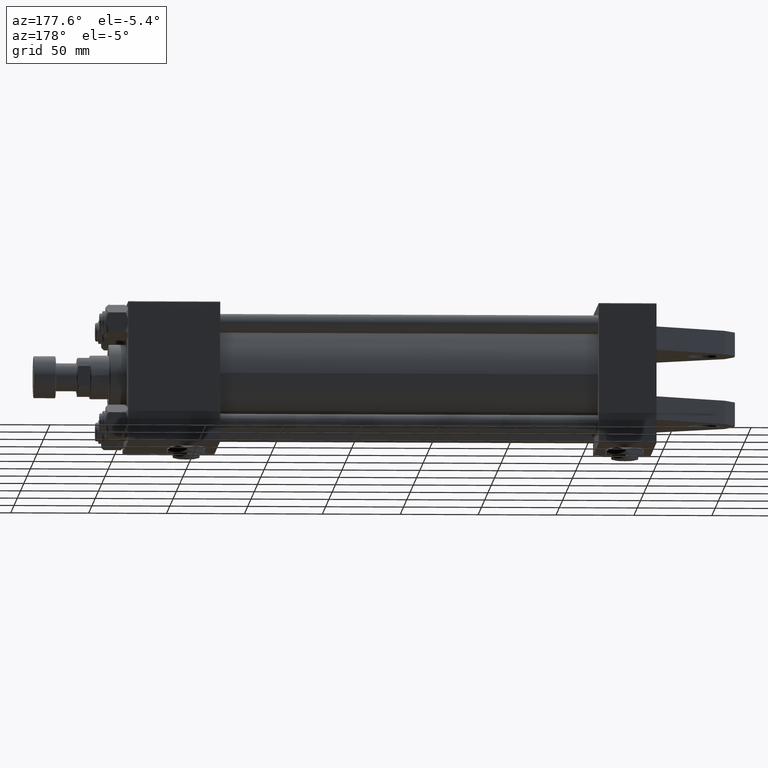
[diagram: clean part render]
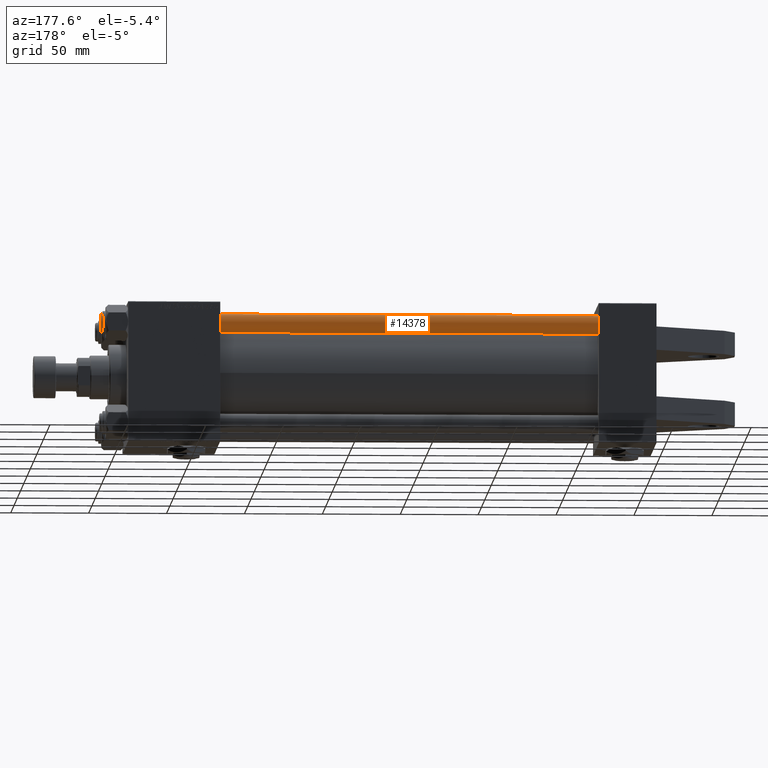
[diagram: same view with one face highlighted and labeled with its STEP entity id]
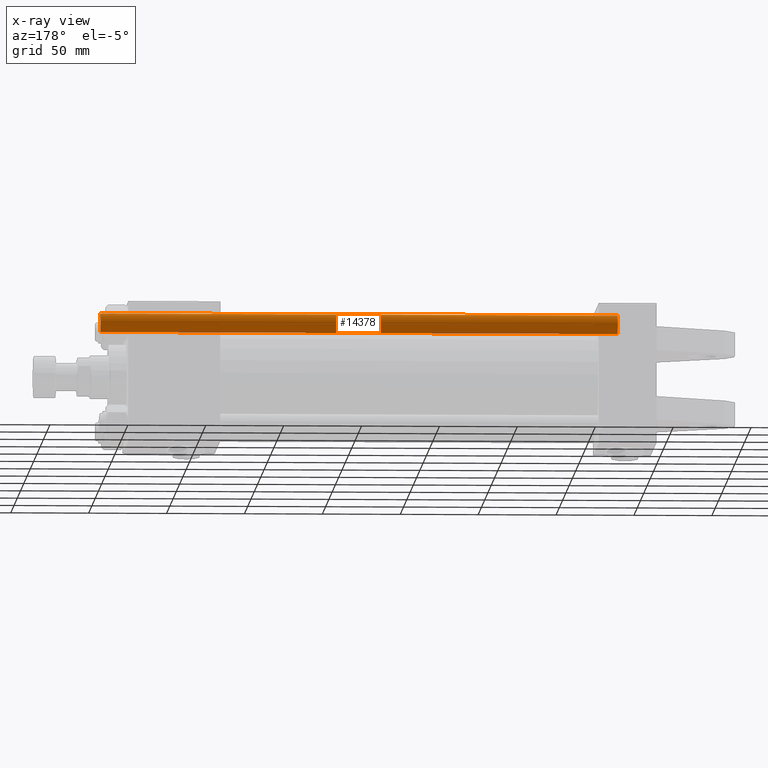
[diagram: x-ray of the same camera — body ghosted, the highlighted face saturated]
A machine part, auxiliary view. The second image highlights one B-rep face of the part: STEP entity #14378.
The next image is the same camera in x-ray: the body ghosted, the highlighted face saturated — about 0% of this face is hidden behind the body in this view.
In plain terms, the highlighted cylindrical surface (edge-blend (fillet) strip) has radius 6 mm, axis along (-1, 0, -0).
Its self-contained STEP definition (entity closure, byte-faithful):
#3773 = VECTOR ( 'NONE', #38193, 1000.000000000000000 ) ;
#3811 = AXIS2_PLACEMENT_3D ( 'NONE', #25862, #38008, #50700 ) ;
#6299 = FACE_OUTER_BOUND ( 'NONE', #17322, .T. ) ;
#6548 = CARTESIAN_POINT ( 'NONE',  ( -6.000000000000000888, 0.000000000000000000, 333.0000000000000000 ) ) ;
#9700 = CARTESIAN_POINT ( 'NONE',  ( -6.000000000000000888, 0.000000000000000000, 0.5000000000000004441 ) ) ;
#10570 = CIRCLE ( 'NONE', #26709, 6.000000000000000888 ) ;
#13113 = DIRECTION ( 'NONE',  ( 1.000000000000000000, 0.000000000000000000, 0.000000000000000000 ) ) ;
#13785 = EDGE_CURVE ( 'NONE', #26047, #42072, #42163, .T. ) ;
#14378 = ADVANCED_FACE ( 'NONE', ( #6299 ), #22419, .T. ) ;
#14438 = CARTESIAN_POINT ( 'NONE',  ( 6.000000000000000888, 7.347880794884120722E-16, 0.5000000000000004441 ) ) ;
#15488 = EDGE_CURVE ( 'NONE', #42072, #42017, #10570, .T. ) ;
#17322 = EDGE_LOOP ( 'NONE', ( #33253, #25091, #24149, #34578 ) ) ;
#18537 = AXIS2_PLACEMENT_3D ( 'NONE', #31616, #43267, #22919 ) ;
#22077 = CARTESIAN_POINT ( 'NONE',  ( 6.000000000000000888, 7.347880794884120722E-16, 333.0000000000000000 ) ) ;
#22134 = LINE ( 'NONE', #6548, #29221 ) ;
#22419 = CYLINDRICAL_SURFACE ( 'NONE', #3811, 6.000000000000000888 ) ;
#22912 = EDGE_CURVE ( 'NONE', #24939, #42017, #22134, .T. ) ;
#22919 = DIRECTION ( 'NONE',  ( 1.000000000000000000, 0.000000000000000000, 0.000000000000000000 ) ) ;
#24149 = ORIENTED_EDGE ( 'NONE', *, *, #15488, .T. ) ;
#24939 = VERTEX_POINT ( 'NONE', #28849 ) ;
#25091 = ORIENTED_EDGE ( 'NONE', *, *, #13785, .T. ) ;
#25862 = CARTESIAN_POINT ( 'NONE',  ( 0.000000000000000000, 0.000000000000000000, 333.0000000000000000 ) ) ;
#26047 = VERTEX_POINT ( 'NONE', #26645 ) ;
#26645 = CARTESIAN_POINT ( 'NONE',  ( 6.000000000000000888, 7.347880794884120722E-16, 332.5000000000001137 ) ) ;
#26709 = AXIS2_PLACEMENT_3D ( 'NONE', #29730, #49059, #13113 ) ;
#28849 = CARTESIAN_POINT ( 'NONE',  ( -6.000000000000000888, 0.000000000000000000, 332.5000000000001137 ) ) ;
#29221 = VECTOR ( 'NONE', #38249, 1000.000000000000000 ) ;
#29730 = CARTESIAN_POINT ( 'NONE',  ( 0.000000000000000000, 0.000000000000000000, 0.5000000000000004441 ) ) ;
#31616 = CARTESIAN_POINT ( 'NONE',  ( 0.000000000000000000, 0.000000000000000000, 332.5000000000001137 ) ) ;
#33253 = ORIENTED_EDGE ( 'NONE', *, *, #35379, .T. ) ;
#34578 = ORIENTED_EDGE ( 'NONE', *, *, #22912, .F. ) ;
#35379 = EDGE_CURVE ( 'NONE', #24939, #26047, #48093, .T. ) ;
#38008 = DIRECTION ( 'NONE',  ( -0.000000000000000000, -0.000000000000000000, -1.000000000000000000 ) ) ;
#38193 = DIRECTION ( 'NONE',  ( -0.000000000000000000, -0.000000000000000000, -1.000000000000000000 ) ) ;
#38249 = DIRECTION ( 'NONE',  ( -0.000000000000000000, -0.000000000000000000, -1.000000000000000000 ) ) ;
#42017 = VERTEX_POINT ( 'NONE', #9700 ) ;
#42072 = VERTEX_POINT ( 'NONE', #14438 ) ;
#42163 = LINE ( 'NONE', #22077, #3773 ) ;
#43267 = DIRECTION ( 'NONE',  ( 0.000000000000000000, 0.000000000000000000, -1.000000000000000000 ) ) ;
#48093 = CIRCLE ( 'NONE', #18537, 6.000000000000000888 ) ;
#49059 = DIRECTION ( 'NONE',  ( -0.000000000000000000, -0.000000000000000000, 1.000000000000000000 ) ) ;
#50700 = DIRECTION ( 'NONE',  ( -1.000000000000000000, 0.000000000000000000, 0.000000000000000000 ) ) ;